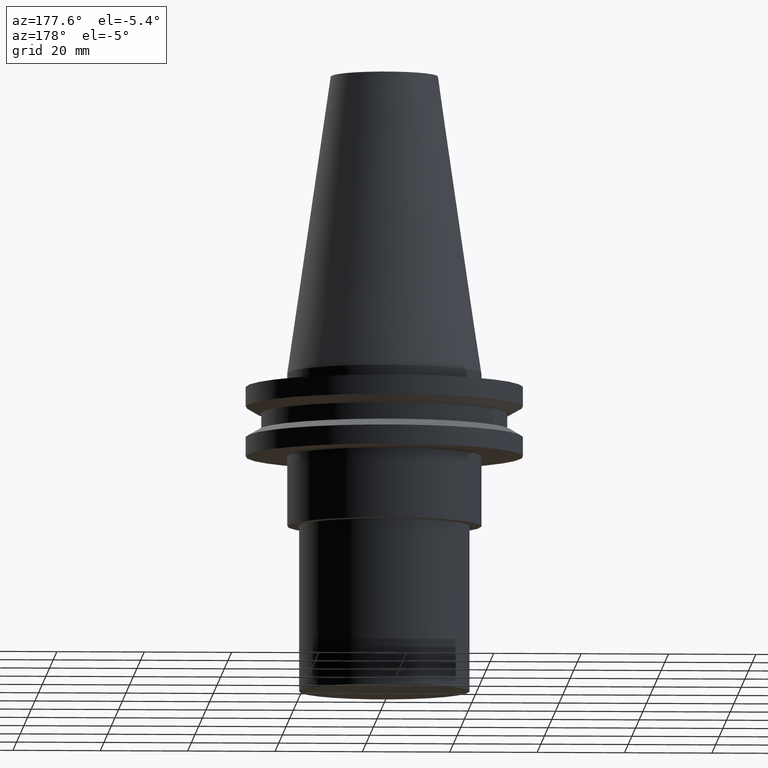
[diagram: clean part render]
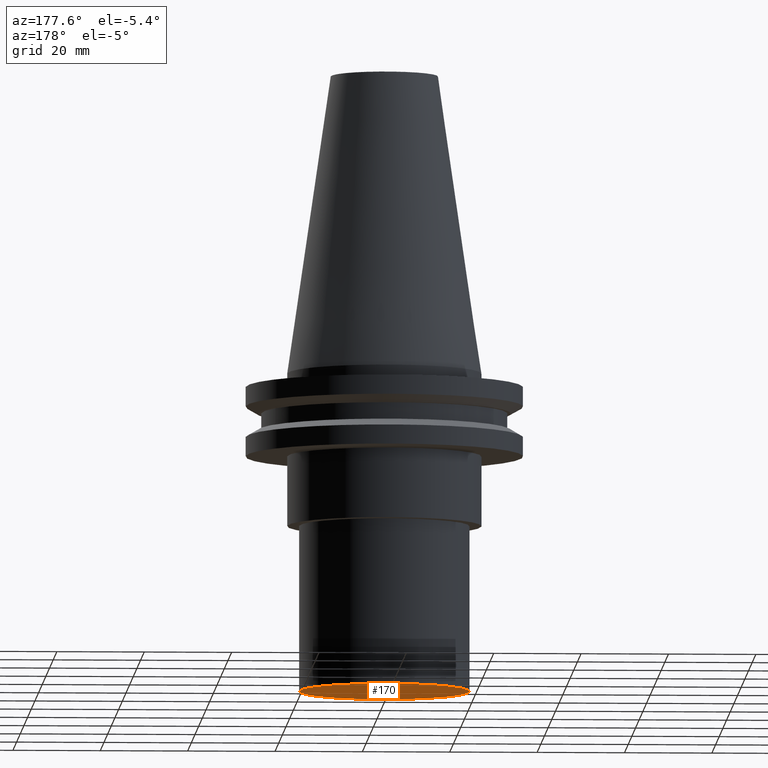
[diagram: same view with one face highlighted and labeled with its STEP entity id]
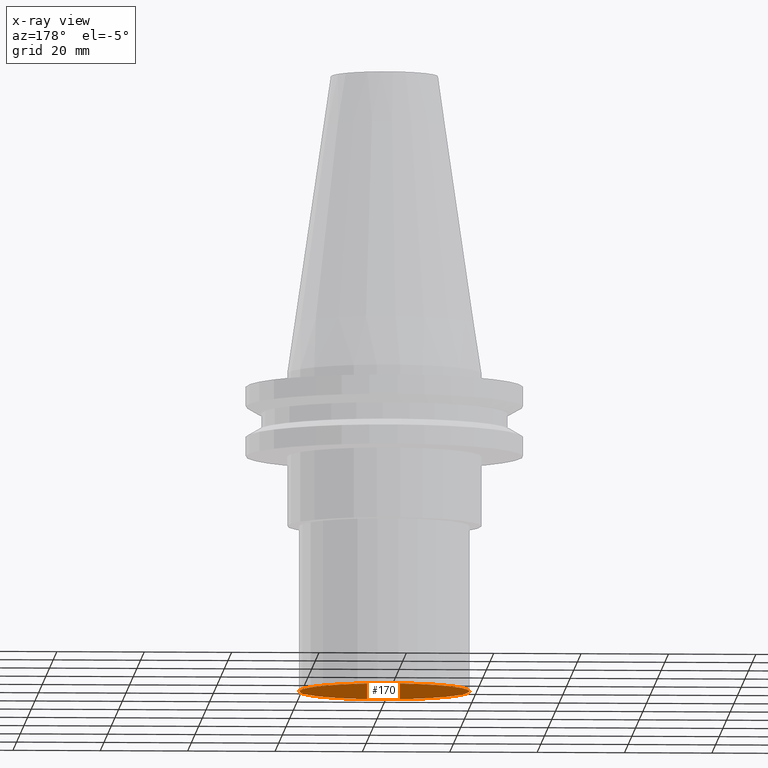
[diagram: x-ray of the same camera — body ghosted, the highlighted face saturated]
A machine part, auxiliary view. The second image highlights one B-rep face of the part: STEP entity #170.
The next image is the same camera in x-ray: the body ghosted, the highlighted face saturated — about 0% of this face is hidden behind the body in this view.
In plain terms, the highlighted planar face has unit normal (0, -0, 1).
Its self-contained STEP definition (entity closure, byte-faithful):
#19 = CIRCLE ( 'NONE', #299, 19.49999999999999289 ) ;
#34 = PLANE ( 'NONE',  #271 ) ;
#50 = EDGE_LOOP ( 'NONE', ( #55 ) ) ;
#54 = VERTEX_POINT ( 'NONE', #111 ) ;
#55 = ORIENTED_EDGE ( 'NONE', *, *, #100, .F. ) ;
#63 = CARTESIAN_POINT ( 'NONE',  ( 0.000000000000000000, 19.49999999999999289, -73.00000000000000000 ) ) ;
#64 = DIRECTION ( 'NONE',  ( 1.000000000000000000, 0.000000000000000000, 0.000000000000000000 ) ) ;
#67 = DIRECTION ( 'NONE',  ( 1.000000000000000000, 0.000000000000000000, 0.000000000000000000 ) ) ;
#100 = EDGE_CURVE ( 'NONE', #54, #54, #19, .T. ) ;
#111 = CARTESIAN_POINT ( 'NONE',  ( 19.49999999999999289, 0.000000000000000000, -73.00000000000000000 ) ) ;
#170 = ADVANCED_FACE ( 'NONE', ( #249 ), #34, .F. ) ;
#178 = DIRECTION ( 'NONE',  ( -0.000000000000000000, -0.000000000000000000, 1.000000000000000000 ) ) ;
#249 = FACE_OUTER_BOUND ( 'NONE', #50, .T. ) ;
#271 = AXIS2_PLACEMENT_3D ( 'NONE', #63, #369, #67 ) ;
#278 = CARTESIAN_POINT ( 'NONE',  ( 0.000000000000000000, 0.000000000000000000, -73.00000000000000000 ) ) ;
#299 = AXIS2_PLACEMENT_3D ( 'NONE', #278, #178, #64 ) ;
#369 = DIRECTION ( 'NONE',  ( 0.000000000000000000, -0.000000000000000000, 1.000000000000000000 ) ) ;